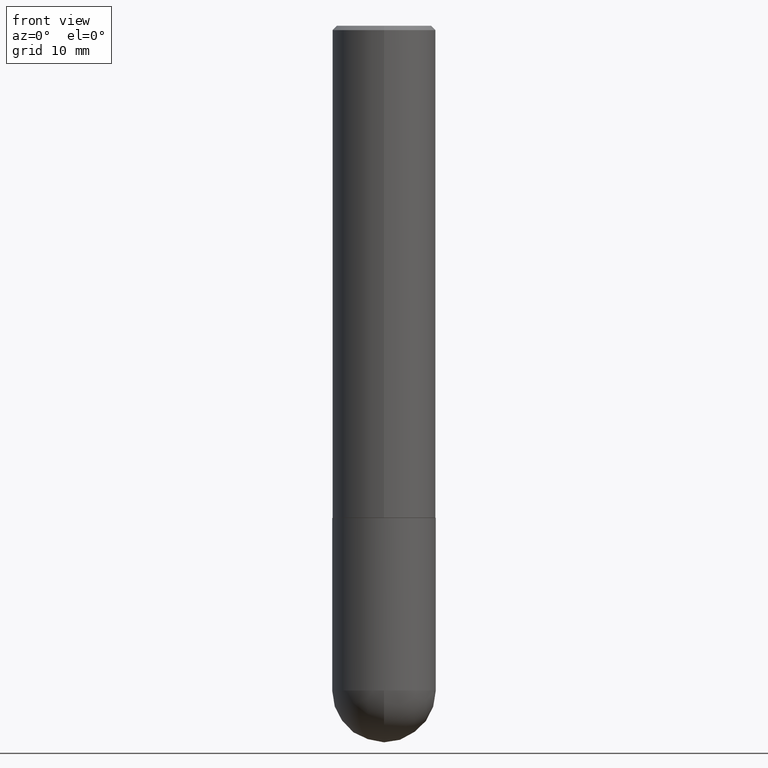
[diagram: clean part render]
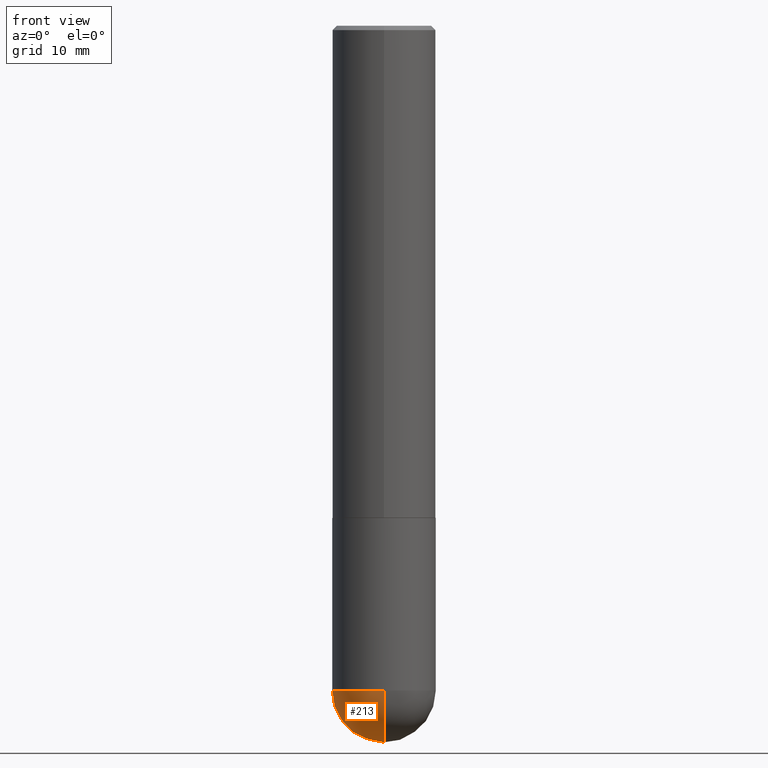
[diagram: same view with one face highlighted and labeled with its STEP entity id]
A machine part, front view. The second image highlights one B-rep face of the part: STEP entity #213.
In plain terms, the highlighted spherical surface has radius 5.9995 mm.
Its self-contained STEP definition (entity closure, byte-faithful):
#4 = AXIS2_PLACEMENT_3D ( 'NONE', #76, #237, #143 ) ;
#16 = DIRECTION ( 'NONE',  ( -2.445468806185136597E-29, 3.491481338843145583E-15, 1.000000000000000000 ) ) ;
#18 = DIRECTION ( 'NONE',  ( 1.000000000000000000, -6.982962677686265133E-15, 0.000000000000000000 ) ) ;
#20 = VERTEX_POINT ( 'NONE', #51 ) ;
#33 = CARTESIAN_POINT ( 'NONE',  ( 7.082318908036356584E-29, -1.105860804684304690E-14, -3.031500000000000306 ) ) ;
#46 = AXIS2_PLACEMENT_3D ( 'NONE', #89, #337, #364 ) ;
#51 = CARTESIAN_POINT ( 'NONE',  ( -1.678301941865284805E-15, -0.2362000000000109567, -3.031499999999998529 ) ) ;
#67 = SPHERICAL_SURFACE ( 'NONE', #4, 0.2362000000000002709 ) ;
#69 = EDGE_CURVE ( 'NONE', #146, #20, #164, .T. ) ;
#73 = FACE_OUTER_BOUND ( 'NONE', #117, .T. ) ;
#76 = CARTESIAN_POINT ( 'NONE',  ( 7.082318908036356584E-29, -1.105860804684304690E-14, -3.031500000000000306 ) ) ;
#89 = CARTESIAN_POINT ( 'NONE',  ( 7.413438685950241710E-29, -1.058442567870299344E-14, -3.031499999999999417 ) ) ;
#110 = AXIS2_PLACEMENT_3D ( 'NONE', #137, #264, #205 ) ;
#117 = EDGE_LOOP ( 'NONE', ( #401, #312, #188, #309 ) ) ;
#126 = EDGE_CURVE ( 'NONE', #146, #274, #182, .T. ) ;
#130 = DIRECTION ( 'NONE',  ( -1.000000000000000000, 7.105427357601001070E-15, -4.926315508542082329E-29 ) ) ;
#137 = CARTESIAN_POINT ( 'NONE',  ( 7.082318908036356584E-29, -1.105860804684304690E-14, -3.031500000000000306 ) ) ;
#143 = DIRECTION ( 'NONE',  ( 6.982962677686265922E-15, 1.000000000000000000, -4.626330217890364603E-15 ) ) ;
#146 = VERTEX_POINT ( 'NONE', #327 ) ;
#151 = CARTESIAN_POINT ( 'NONE',  ( -0.2361999999999999933, -7.531527533735093865E-15, -3.031499999999999417 ) ) ;
#164 = CIRCLE ( 'NONE', #398, 0.2362000000000002709 ) ;
#182 = CIRCLE ( 'NONE', #110, 0.2362000000000002709 ) ;
#188 = ORIENTED_EDGE ( 'NONE', *, *, #301, .F. ) ;
#205 = DIRECTION ( 'NONE',  ( 6.982962677686265922E-15, 1.000000000000000000, 0.000000000000000000 ) ) ;
#213 = ADVANCED_FACE ( 'NONE', ( #73 ), #67, .T. ) ;
#237 = DIRECTION ( 'NONE',  ( -1.000000000000000000, 6.982962677686265922E-15, -4.883557194083112901E-29 ) ) ;
#264 = DIRECTION ( 'NONE',  ( 1.000000000000000000, -6.982962677686265922E-15, 4.883557194083112340E-29 ) ) ;
#274 = VERTEX_POINT ( 'NONE', #329 ) ;
#283 = CIRCLE ( 'NONE', #314, 0.2361999999999999933 ) ;
#285 = DIRECTION ( 'NONE',  ( -7.105427357601001070E-15, -1.000000000000000000, 0.000000000000000000 ) ) ;
#293 = EDGE_CURVE ( 'NONE', #274, #363, #409, .T. ) ;
#301 = EDGE_CURVE ( 'NONE', #363, #20, #283, .T. ) ;
#309 = ORIENTED_EDGE ( 'NONE', *, *, #293, .F. ) ;
#310 = CARTESIAN_POINT ( 'NONE',  ( 7.413438685950241710E-29, -1.058442567870299344E-14, -3.031499999999999417 ) ) ;
#312 = ORIENTED_EDGE ( 'NONE', *, *, #69, .T. ) ;
#314 = AXIS2_PLACEMENT_3D ( 'NONE', #310, #16, #18 ) ;
#327 = CARTESIAN_POINT ( 'NONE',  ( 7.670038153932495115E-29, -1.186883286037986759E-14, -3.267700000000000049 ) ) ;
#329 = CARTESIAN_POINT ( 'NONE',  ( 1.649375784469569495E-15, 0.2361999999999893074, -3.031500000000000750 ) ) ;
#337 = DIRECTION ( 'NONE',  ( -2.445468806185136597E-29, 3.491481338843145583E-15, 1.000000000000000000 ) ) ;
#363 = VERTEX_POINT ( 'NONE', #151 ) ;
#364 = DIRECTION ( 'NONE',  ( 1.000000000000000000, -6.982962677686265133E-15, 0.000000000000000000 ) ) ;
#398 = AXIS2_PLACEMENT_3D ( 'NONE', #33, #130, #285 ) ;
#401 = ORIENTED_EDGE ( 'NONE', *, *, #126, .F. ) ;
#409 = CIRCLE ( 'NONE', #46, 0.2361999999999999933 ) ;